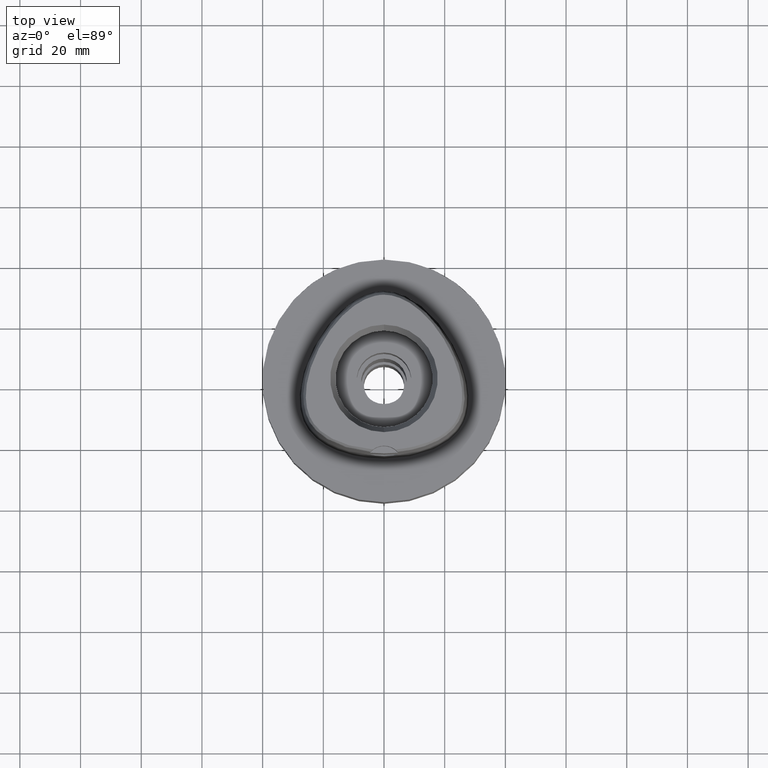
[diagram: clean part render]
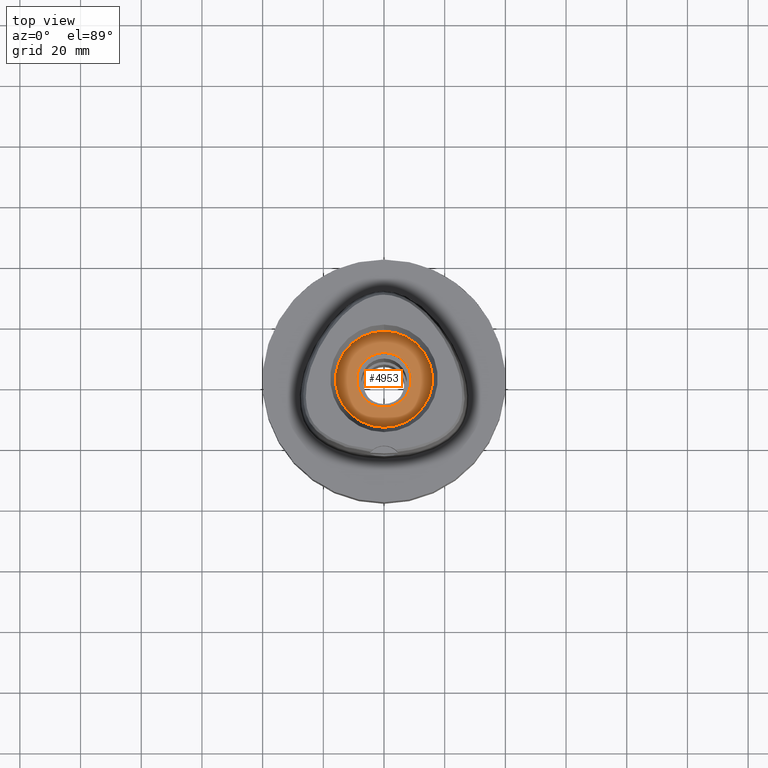
[diagram: same view with one face highlighted and labeled with its STEP entity id]
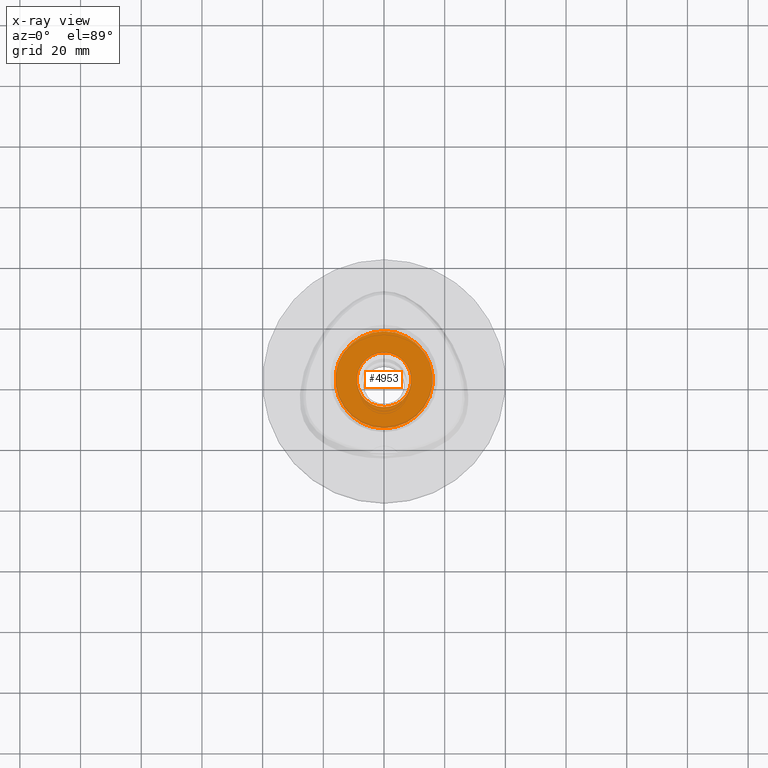
[diagram: x-ray of the same camera — body ghosted, the highlighted face saturated]
A machine part, top view. The second image highlights one B-rep face of the part: STEP entity #4953.
The next image is the same camera in x-ray: the body ghosted, the highlighted face saturated — about 0% of this face is hidden behind the body in this view.
In plain terms, the highlighted planar face has unit normal (0, 0, -1).
Its self-contained STEP definition (entity closure, byte-faithful):
#8 = DIRECTION ( 'NONE',  ( 0.0000000000000000000, 1.000000000000000000, 0.0000000000000000000 ) ) ;
#128 = FACE_OUTER_BOUND ( 'NONE', #4538, .T. ) ;
#248 = CARTESIAN_POINT ( 'NONE',  ( 0.0000000000000000000, 0.0000000000000000000, 20.00000000000000000 ) ) ;
#319 = DIRECTION ( 'NONE',  ( 0.0000000000000000000, -1.000000000000000000, 0.0000000000000000000 ) ) ;
#328 = CARTESIAN_POINT ( 'NONE',  ( 0.0000000000000000000, 0.0000000000000000000, 20.00000000000000000 ) ) ;
#417 = EDGE_CURVE ( 'NONE', #3906, #1272, #1693, .T. ) ;
#460 = EDGE_LOOP ( 'NONE', ( #3455, #1053 ) ) ;
#699 = CIRCLE ( 'NONE', #3870, 16.00000000000000000 ) ;
#790 = DIRECTION ( 'NONE',  ( 0.0000000000000000000, 0.0000000000000000000, -1.000000000000000000 ) ) ;
#979 = DIRECTION ( 'NONE',  ( 0.0000000000000000000, 0.0000000000000000000, 1.000000000000000000 ) ) ;
#1053 = ORIENTED_EDGE ( 'NONE', *, *, #417, .F. ) ;
#1272 = VERTEX_POINT ( 'NONE', #2379 ) ;
#1372 = DIRECTION ( 'NONE',  ( 0.0000000000000000000, 0.0000000000000000000, -1.000000000000000000 ) ) ;
#1450 = CARTESIAN_POINT ( 'NONE',  ( 0.0000000000000000000, -16.00000000000000000, 20.00000000000000000 ) ) ;
#1563 = DIRECTION ( 'NONE',  ( 0.0000000000000000000, 0.0000000000000000000, -1.000000000000000000 ) ) ;
#1693 = CIRCLE ( 'NONE', #3361, 9.000000000000000000 ) ;
#1733 = FACE_BOUND ( 'NONE', #460, .T. ) ;
#1958 = EDGE_CURVE ( 'NONE', #3913, #1980, #699, .T. ) ;
#1980 = VERTEX_POINT ( 'NONE', #3207 ) ;
#2180 = ORIENTED_EDGE ( 'NONE', *, *, #1958, .F. ) ;
#2264 = ORIENTED_EDGE ( 'NONE', *, *, #3197, .F. ) ;
#2379 = CARTESIAN_POINT ( 'NONE',  ( 0.0000000000000000000, -9.000000000000000000, 20.00000000000000000 ) ) ;
#2395 = CARTESIAN_POINT ( 'NONE',  ( 0.0000000000000000000, 0.0000000000000000000, 20.00000000000000000 ) ) ;
#2585 = CARTESIAN_POINT ( 'NONE',  ( 0.0000000000000000000, 0.0000000000000000000, 20.00000000000000000 ) ) ;
#2792 = CIRCLE ( 'NONE', #4714, 16.00000000000000000 ) ;
#3197 = EDGE_CURVE ( 'NONE', #1980, #3913, #2792, .T. ) ;
#3207 = CARTESIAN_POINT ( 'NONE',  ( 0.0000000000000000000, 16.00000000000000000, 20.00000000000000000 ) ) ;
#3361 = AXIS2_PLACEMENT_3D ( 'NONE', #248, #979, #3506 ) ;
#3455 = ORIENTED_EDGE ( 'NONE', *, *, #4147, .F. ) ;
#3506 = DIRECTION ( 'NONE',  ( 0.0000000000000000000, 1.000000000000000000, 0.0000000000000000000 ) ) ;
#3777 = DIRECTION ( 'NONE',  ( 0.0000000000000000000, 0.0000000000000000000, 1.000000000000000000 ) ) ;
#3870 = AXIS2_PLACEMENT_3D ( 'NONE', #2395, #1563, #319 ) ;
#3906 = VERTEX_POINT ( 'NONE', #4603 ) ;
#3913 = VERTEX_POINT ( 'NONE', #1450 ) ;
#3932 = AXIS2_PLACEMENT_3D ( 'NONE', #4165, #3777, #4143 ) ;
#4143 = DIRECTION ( 'NONE',  ( 0.0000000000000000000, -1.000000000000000000, 0.0000000000000000000 ) ) ;
#4147 = EDGE_CURVE ( 'NONE', #1272, #3906, #4589, .T. ) ;
#4165 = CARTESIAN_POINT ( 'NONE',  ( 0.0000000000000000000, 0.0000000000000000000, 20.00000000000000000 ) ) ;
#4176 = DIRECTION ( 'NONE',  ( 0.0000000000000000000, -1.000000000000000000, 0.0000000000000000000 ) ) ;
#4538 = EDGE_LOOP ( 'NONE', ( #2180, #2264 ) ) ;
#4589 = CIRCLE ( 'NONE', #3932, 9.000000000000000000 ) ;
#4603 = CARTESIAN_POINT ( 'NONE',  ( 0.0000000000000000000, 9.000000000000000000, 20.00000000000000000 ) ) ;
#4681 = AXIS2_PLACEMENT_3D ( 'NONE', #2585, #1372, #4176 ) ;
#4714 = AXIS2_PLACEMENT_3D ( 'NONE', #328, #790, #8 ) ;
#4939 = PLANE ( 'NONE',  #4681 ) ;
#4953 = ADVANCED_FACE ( 'NONE', ( #128, #1733 ), #4939, .F. ) ;